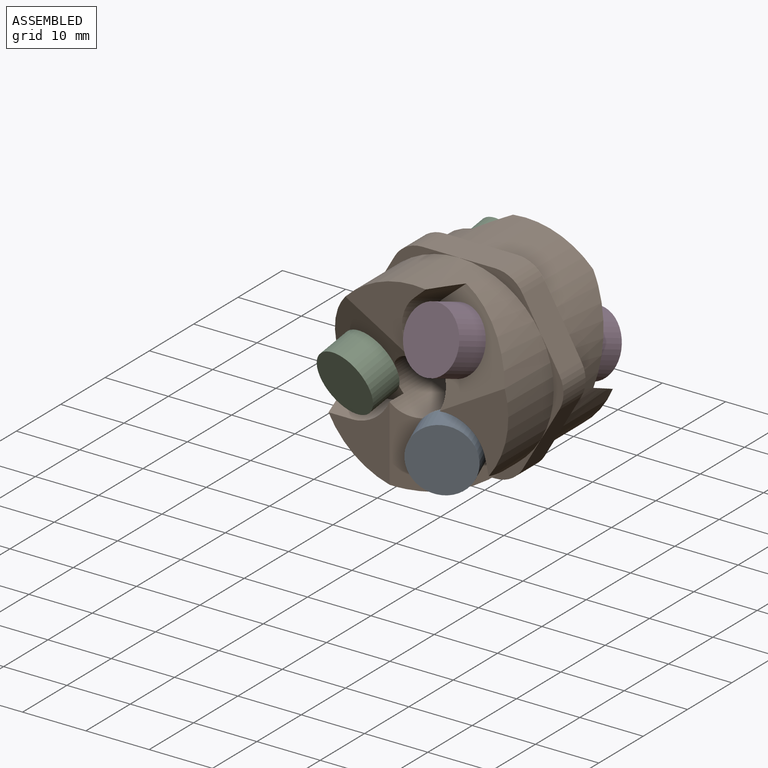
[diagram: assembled view]
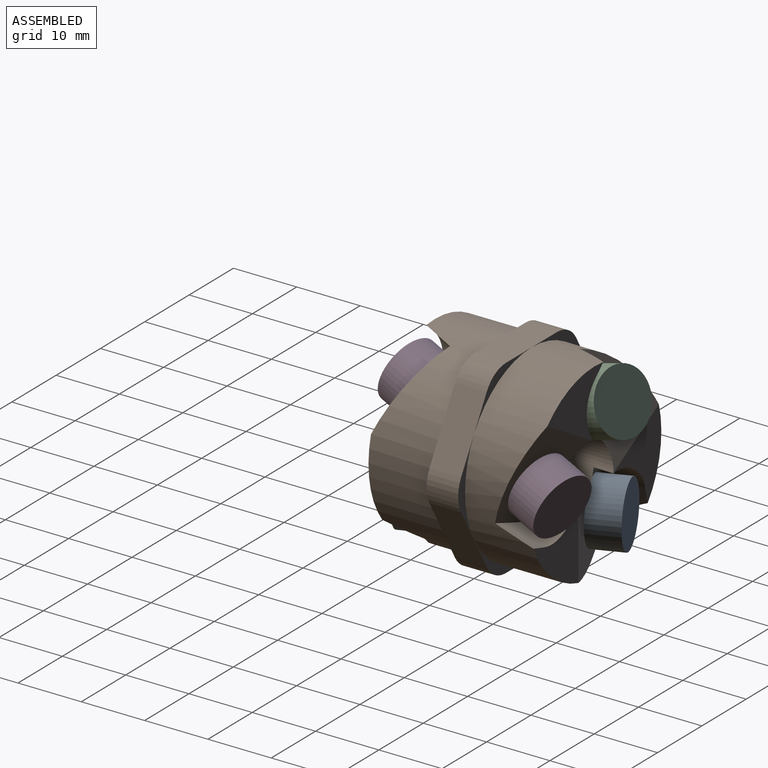
[diagram: assembled view, second angle]
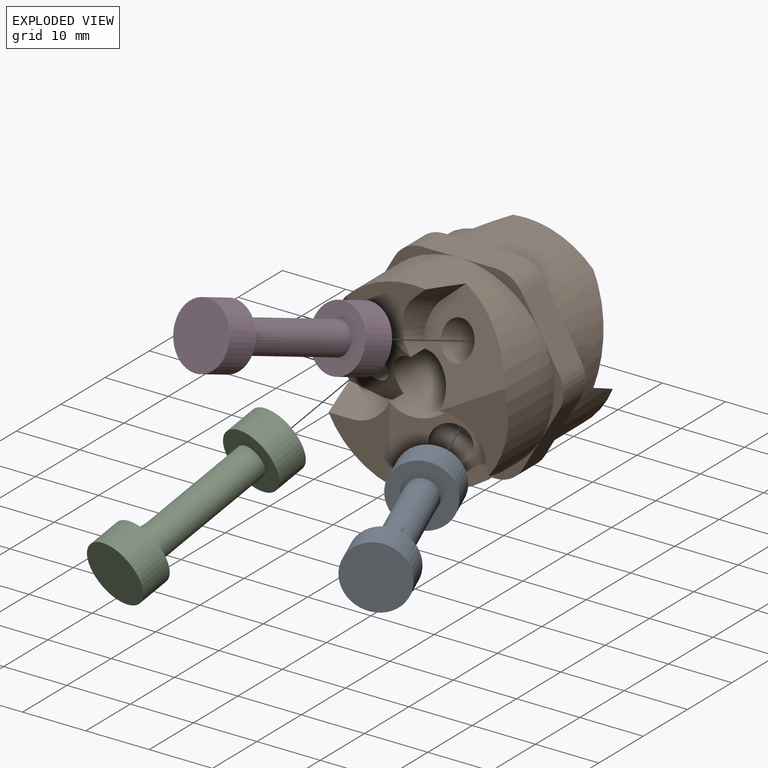
[diagram: exploded view]
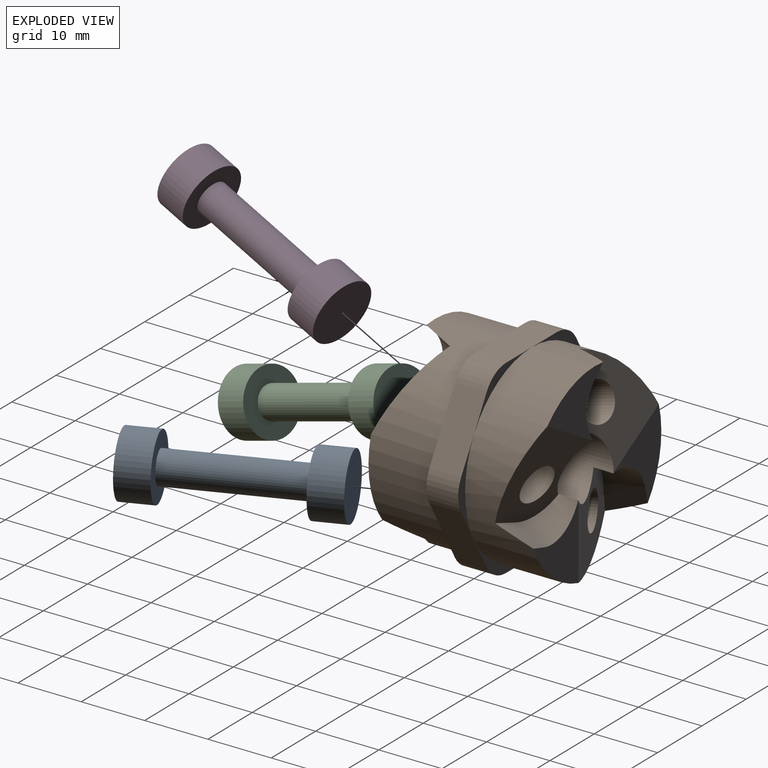
[diagram: exploded view, second angle]
ASSEMBLY  parts=4 mates=3
PART A: 7 faces, bbox 10x30.7x10 mm
  f0: cylinder r=5mm len=10mm, axis (0,1,0), area 157.1mm2, adj f1,f2
  f1: plane 10x10mm, normal (0,-1,0), area 78.5mm2, adj f0
  f2: plane 10x10mm, normal (0,1,0), area 58.9mm2, adj f0,f3
  f3: cylinder r=2.5mm len=20.72mm, axis (0,1,0), area 325.5mm2, adj f2,f6
  f4: cylinder r=5mm len=10mm, axis (0,-1,0), area 157.1mm2, adj f5,f6
  f5: plane 10x10mm, normal (0,1,0), area 78.5mm2, adj f4
  f6: plane 10x10mm, normal (0,-1,0), area 58.9mm2, adj f3,f4
PART B: 54 faces, bbox 33.4x30.5x30.3 mm
  f0: cylinder r=6mm len=8.14mm, axis (-0.18,-0.93,0.32), area 38.1mm2, adj f5,f23,f43,f50
  f1: cylinder r=6mm len=9.5mm, axis (-0.18,-0.93,0.32), area 38.5mm2, adj f2,f23,f44,f51
  f2: plane 16.17x15.45mm, normal (-0.18,-0.93,0.32), area 122.3mm2, adj f1,f3,f6,f23,f47,f51
  f3: cylinder r=3mm len=21.46mm, axis (-0.18,-0.93,0.32), area 390.4mm2, adj f2,f5
  f4: plane 12.65x10.43mm, normal (0,1,0), area 57.4mm2, adj f5,f7,f14,f23,f49
  f5: plane 15.54x14.5mm, normal (0.18,0.93,-0.32), area 122.4mm2, adj f0,f3,f4,f7,f23,f50
  f6: cylinder r=15mm len=30mm, axis (0,1,0), area 808.4mm2, adj f2,f17,f36,f37,f38,f39,f40,f41
  f7: cylinder r=15mm len=30mm, axis (0,1,0), area 792.9mm2, adj f4,f5,f15,f20,f30,f31,f32,f33
  f8: cylinder r=5mm len=5mm, axis (0,-1,0), area 26.2mm2, adj f24,f29,f31,f37
  f9: cylinder r=5mm len=5mm, axis (0,-1,0), area 26.2mm2, adj f28,f29,f35,f41
  f10: cylinder r=5mm len=5mm, axis (0,-1,0), area 26.2mm2, adj f27,f28,f34,f40
  f11: cylinder r=5mm len=5mm, axis (0,-1,0), area 26.2mm2, adj f26,f27,f33,f39
  f12: cylinder r=5mm len=5mm, axis (0,-1,0), area 26.2mm2, adj f25,f26,f32,f38
  f13: cylinder r=5mm len=5mm, axis (0,-1,0), area 26.2mm2, adj f24,f25,f30,f36
  f14: cylinder r=6mm len=9.45mm, axis (-0.18,-0.93,-0.32), area 38.1mm2, adj f4,f15,f23,f49
  f15: plane 16.18x15.44mm, normal (0.18,0.93,0.32), area 122.4mm2, adj f7,f14,f16,f23,f42,f49
  f16: cylinder r=3mm len=21.46mm, axis (-0.18,-0.93,-0.32), area 390.4mm2, adj f15,f17
  f17: plane 15.54x14.5mm, normal (-0.18,-0.93,-0.32), area 125.9mm2, adj f6,f16,f22,f23,f44,f52
  f18: cylinder r=3mm len=21.45mm, axis (-0.37,0.93,0), area 390.2mm2, adj f20,f46
  f19: cylinder r=6mm len=8.22mm, axis (-0.37,0.93,0), area 38.1mm2, adj f20,f23,f42,f48
  f20: plane 14.2x13.42mm, normal (-0.37,0.93,0), area 122.4mm2, adj f7,f18,f19,f23,f43,f48
  f21: cylinder r=6mm len=8.25mm, axis (-0.37,0.93,0), area 38.6mm2, adj f23,f46,f47,f53
  f22: cylinder r=6mm len=7.2mm, axis (-0.18,-0.93,-0.32), area 29.1mm2, adj f17,f23,f45,f52
  f23: cylinder r=4.6mm len=25.24mm, axis (0,-1,0), area 635.3mm2, adj f0,f1,f2,f4,f5,f14,f15,f17
  f24: plane 11.55x5mm, normal (0,0,1), area 57.7mm2, adj f8,f13,f30,f31,f36,f37
  f25: plane 10x5.77mm, normal (-0.87,0,0.5), area 57.7mm2, adj f12,f13,f30,f32,f36,f38
  f26: plane 10x5.77mm, normal (-0.87,0,-0.5), area 57.7mm2, adj f11,f12,f32,f33,f38,f39
  f27: plane 11.55x5mm, normal (0,0,-1), area 57.7mm2, adj f10,f11,f33,f34,f39,f40
  f28: plane 10x5.77mm, normal (0.87,0,-0.5), area 57.7mm2, adj f9,f10,f34,f35,f40,f41
  f29: plane 10x5.77mm, normal (0.87,0,0.5), area 57.7mm2, adj f8,f9,f31,f35,f37,f41
  f30: plane 12.99x7.5mm, normal (0,1,0), area 10.8mm2, adj f7,f13,f24,f25
  f31: plane 12.99x7.5mm, normal (0,1,0), area 10.8mm2, adj f7,f8,f24,f29
  f32: plane 15x3.56mm, normal (0,1,0), area 10.8mm2, adj f7,f12,f25,f26
  f33: plane 12.99x7.5mm, normal (0,1,0), area 10.8mm2, adj f7,f11,f26,f27
  f34: plane 12.99x7.5mm, normal (0,1,0), area 10.8mm2, adj f7,f10,f27,f28
  f35: plane 15x3.56mm, normal (0,1,0), area 10.8mm2, adj f7,f9,f28,f29
  f36: plane 12.99x7.5mm, normal (0,-1,0), area 10.8mm2, adj f6,f13,f24,f25
  f37: plane 12.99x7.5mm, normal (0,-1,0), area 10.8mm2, adj f6,f8,f24,f29
  f38: plane 15x3.56mm, normal (0,-1,0), area 10.8mm2, adj f6,f12,f25,f26
  f39: plane 12.99x7.5mm, normal (0,-1,0), area 10.8mm2, adj f6,f11,f26,f27
  f40: plane 12.99x7.5mm, normal (0,-1,0), area 10.8mm2, adj f6,f10,f27,f28
  f41: plane 15x3.56mm, normal (0,-1,0), area 10.8mm2, adj f6,f9,f28,f29
  f42: plane 13.16x10.82mm, normal (0,1,0), area 57.4mm2, adj f7,f15,f19,f23,f48
  f43: plane 11.87x10.13mm, normal (0,1,0), area 57.4mm2, adj f0,f7,f20,f23,f50
  f44: plane 12.69x10.43mm, normal (0,-1,0), area 57.5mm2, adj f1,f6,f17,f23,f51
  f45: plane 11.87x9.65mm, normal (0,-1,0), area 55.6mm2, adj f6,f22,f23,f46,f52
  f46: plane 14.17x13.42mm, normal (0.37,-0.93,0), area 122.6mm2, adj f6,f18,f21,f23,f45,f53
  f47: plane 13.19x10.82mm, normal (0,-1,0), area 57.5mm2, adj f2,f6,f21,f23,f53
  f48: plane 5.69x4.6mm, normal (0.91,0.36,-0.22), area 20.6mm2, adj f7,f19,f20,f42
  f49: plane 5.69x4.58mm, normal (-0.64,0.36,-0.68), area 20.6mm2, adj f4,f7,f14,f15
  f50: plane 5.69x4.46mm, normal (-0.27,0.36,0.89), area 20.6mm2, adj f0,f5,f7,f43
  f51: plane 5.68x4.59mm, normal (0.63,-0.36,-0.69), area 20.3mm2, adj f1,f2,f6,f44
  f52: plane 6.02x5.6mm, normal (0,-0.33,0.95), area 26.7mm2, adj f6,f17,f22,f45
  f53: plane 5.69x4.58mm, normal (-0.91,-0.36,-0.2), area 20.4mm2, adj f6,f21,f46,f47
PART C: same geometry as A
PART D: same geometry as A
PLACE A rot(axis=(0,0,-1),158.3deg) t=(0,-13.52,-7.87)mm
PLACE B t=(0,-2.97,-7.87)mm
PLACE C rot(axis=(0.87,0.08,-0.48),21.8deg) t=(-6.82,-13.53,3.93)mm
PLACE D rot(axis=(-0.87,-0.08,-0.48),21.8deg) t=(6.82,-13.53,3.93)mm
MATE revolute D.f3 <-> B.f0  axis (-0.18,-0.93,0.32) through (6.82,-13.53,3.93)mm
MATE revolute C.f3 <-> B.f14  axis (-0.18,-0.93,-0.32) through (-6.82,-13.53,3.93)mm
MATE revolute A.f3 <-> B.f18  axis (0.37,-0.93,0) through (0,-13.52,-7.87)mm
